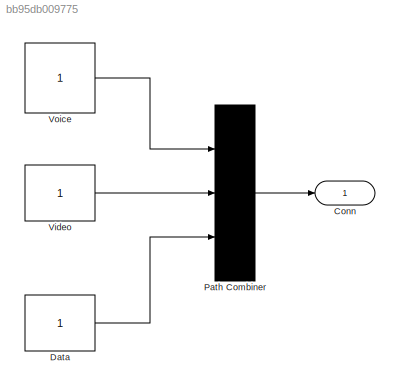
MODEL slx_bb95db009775
KIND model
CONFIG AbsTol = auto
CONFIG EnableMultiTasking = off
CONFIG FixedStep = auto
CONFIG MaxStep = auto
CONFIG MinStep = auto
CONFIG RelTol = 1e-3
CONFIG SampleTimeConstraint = Unconstrained
CONFIG SolverName = VariableStepAuto
CONFIG StartTime = 0.0
CONFIG StopTime = 10.0
BLOCK [Outport] Conn
BLOCK [Constant] Data
BLOCK [Mux] Path Combiner
  Inputs = 3
  Ports = [3, 1]
BLOCK [Constant] Video
BLOCK [Constant] Voice
LINE Data:1 -> Path Combiner:3
LINE Path Combiner:1 -> Conn:1
LINE Video:1 -> Path Combiner:2
LINE Voice:1 -> Path Combiner:1
